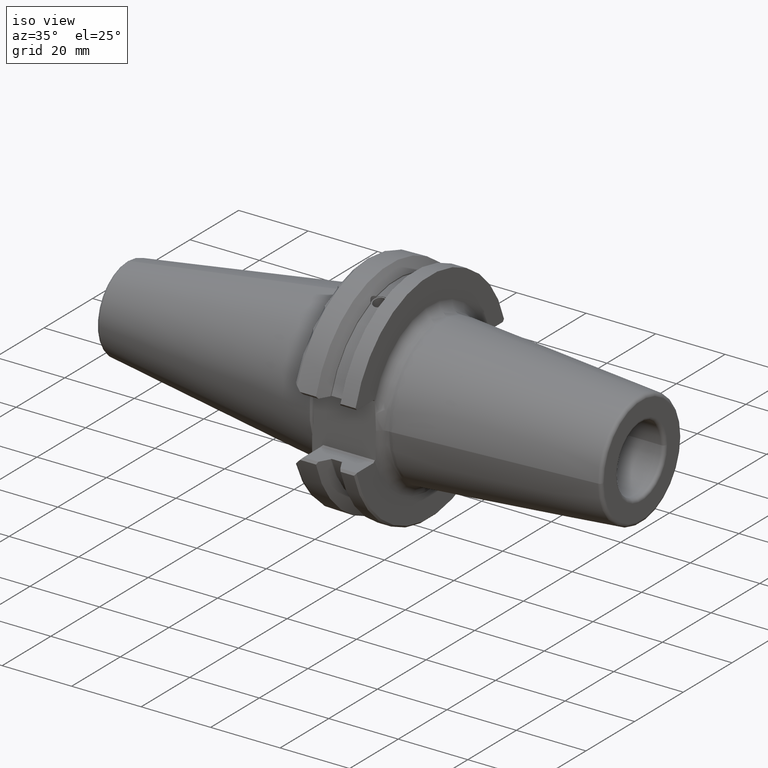
[diagram: clean part render]
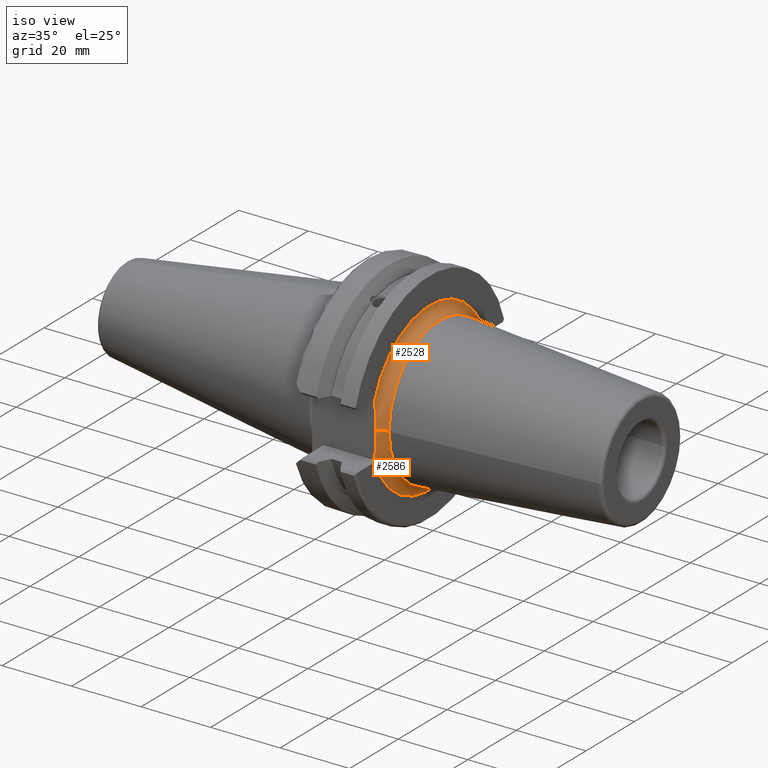
[diagram: same view with one multi-face feature highlighted, each face labeled with its STEP entity id]
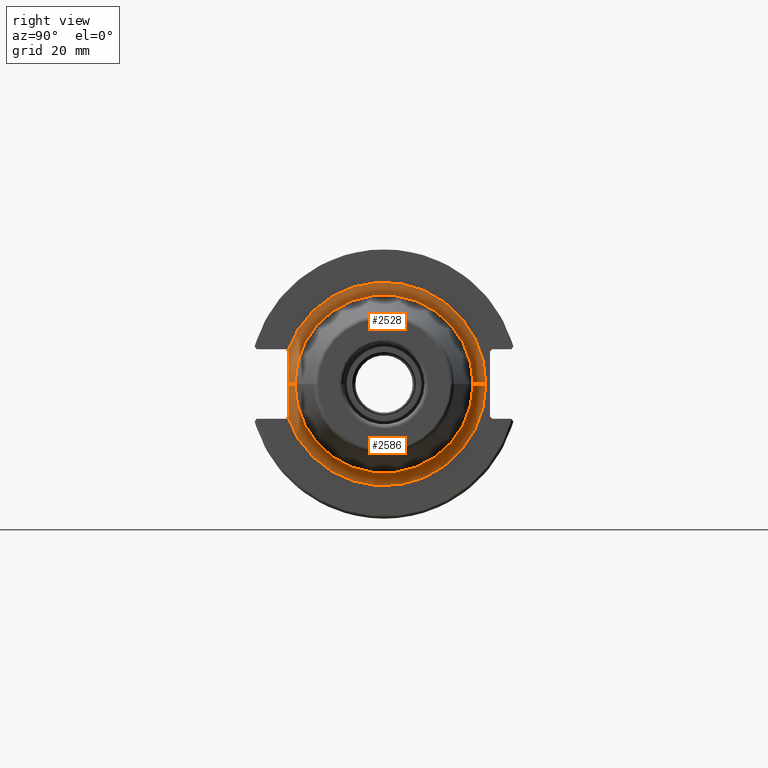
[diagram: same view with one multi-face feature highlighted, each face labeled with its STEP entity id]
A machine part, iso view. The highlighted faces form ONE feature: a constant-radius fillet chain: 2 tangent blend faces with common blend radius 3 mm. The faces share edges in the B-rep.
A second angle (right view) of the same feature is appended — it is thin or edge-on in the first view.
Their STEP definitions:
[1] entity #2528 (Torus):
#237=CARTESIAN_POINT('',(2.205E1,0.E0,0.E0));
#238=DIRECTION('',(1.E0,0.E0,0.E0));
#239=DIRECTION('',(0.E0,1.E0,0.E0));
#240=AXIS2_PLACEMENT_3D('',#237,#238,#239);
#247=CARTESIAN_POINT('',(2.205E1,2.400005840157E1,3.256063196844E-10));
#248=DIRECTION('',(0.E0,-1.356689934007E-11,1.E0));
#249=DIRECTION('',(-1.E0,7.519934304886E-10,0.E0));
#250=AXIS2_PLACEMENT_3D('',#247,#248,#249);
#257=CARTESIAN_POINT('',(1.905E1,0.E0,0.E0));
#258=DIRECTION('',(1.E0,0.E0,0.E0));
#259=DIRECTION('',(0.E0,1.E0,0.E0));
#260=AXIS2_PLACEMENT_3D('',#257,#258,#259);
#305=CARTESIAN_POINT('',(1.939673098349E1,-2.260000000005E1,7.046014674781E-5));
#307=CARTESIAN_POINT('',(2.205E1,-2.400005840074E1,7.482511667878E-5));
#308=DIRECTION('',(0.E0,-3.117705608419E-6,-9.999999999951E-1));
#309=DIRECTION('',(-8.844230055369E-1,4.666861335790E-1,-1.454989976038E-6));
#310=AXIS2_PLACEMENT_3D('',#307,#308,#309);
#1250=CARTESIAN_POINT('',(1.905271322372E1,-2.26E1,7.69E0));
#1251=CARTESIAN_POINT('',(1.905826273719E1,-2.26E1,7.285205596013E0));
#1252=CARTESIAN_POINT('',(1.908639472858E1,-2.26E1,6.438703756803E0));
#1253=CARTESIAN_POINT('',(1.916758713863E1,-2.26E1,5.065239355994E0));
#1254=CARTESIAN_POINT('',(1.927020157743E1,-2.260000000001E1,3.566142560436E0));
#1255=CARTESIAN_POINT('',(1.936926999322E1,-2.259999999998E1,1.824675131026E0));
#1256=CARTESIAN_POINT('',(1.939672996049E1,-2.260000000005E1,
6.219056915713E-1));
#1257=CARTESIAN_POINT('',(1.939673098349E1,-2.260000000005E1,
7.046014674781E-5));
#1271=CARTESIAN_POINT('',(1.905271322372E1,-2.26E1,7.69E0));
#1272=CARTESIAN_POINT('',(1.905180589380E1,-2.261680242192E1,7.706802421920E0));
#1273=CARTESIAN_POINT('',(1.905044943231E1,-2.265036895128E1,7.740285676459E0));
#1274=CARTESIAN_POINT('',(1.905E1,-2.268374514604E1,7.773911695674E0));
#1275=CARTESIAN_POINT('',(1.905E1,-2.270043291484E1,7.790599464483E0));
#2086=CARTESIAN_POINT('',(1.905E1,2.400005840085E1,0.E0));
#2088=VERTEX_POINT('',#2086);
#2089=CARTESIAN_POINT('',(2.205E1,-2.100005840383E1,0.E0));
#2090=CARTESIAN_POINT('',(2.205E1,2.100005840383E1,0.E0));
#2091=VERTEX_POINT('',#2089);
#2092=VERTEX_POINT('',#2090);
#2093=CARTESIAN_POINT('',(1.905E1,-2.270046780319E1,7.790479112047E0));
#2094=VERTEX_POINT('',#2093);
#2100=VERTEX_POINT('',#1271);
#2101=VERTEX_POINT('',#305);
#2510=CARTESIAN_POINT('',(2.205E1,0.E0,0.E0));
#2511=DIRECTION('',(1.E0,0.E0,0.E0));
#2512=DIRECTION('',(0.E0,9.999196739916E-1,-1.267460313487E-2));
#2513=AXIS2_PLACEMENT_3D('',#2510,#2511,#2512);
#2514=TOROIDAL_SURFACE('',#2513,2.400005840157E1,3.E0);
#2516=ORIENTED_EDGE('',*,*,#2515,.F.);
#2518=ORIENTED_EDGE('',*,*,#2517,.T.);
#2519=ORIENTED_EDGE('',*,*,#2500,.T.);
#2521=ORIENTED_EDGE('',*,*,#2520,.F.);
#2523=ORIENTED_EDGE('',*,*,#2522,.F.);
#2525=ORIENTED_EDGE('',*,*,#2524,.T.);
#2526=EDGE_LOOP('',(#2516,#2518,#2519,#2521,#2523,#2525));
#2527=FACE_OUTER_BOUND('',#2526,.F.);
#2528=ADVANCED_FACE('',(#2527),#2514,.F.);
#241=CIRCLE('',#240,2.100005840383E1);
#251=CIRCLE('',#250,3.E0);
#261=CIRCLE('',#260,2.400005840157E1);
#311=CIRCLE('',#310,3.E0);
#1258=B_SPLINE_CURVE_WITH_KNOTS('',3,(#1250,#1251,#1252,#1253,#1254,#1255,#1256,
#1257),.UNSPECIFIED.,.F.,.F.,(4,1,1,1,1,4),(0.E0,2.E-1,4.E-1,6.E-1,8.E-1,1.E0),
.UNSPECIFIED.);
#1276=B_SPLINE_CURVE_WITH_KNOTS('',3,(#1271,#1272,#1273,#1274,#1275),
.UNSPECIFIED.,.F.,.F.,(4,1,4),(0.E0,5.E-1,1.E0),.UNSPECIFIED.);
#2500=EDGE_CURVE('',#2092,#2091,#241,.T.);
#2515=EDGE_CURVE('',#2088,#2094,#261,.T.);
#2517=EDGE_CURVE('',#2088,#2092,#251,.T.);
#2520=EDGE_CURVE('',#2101,#2091,#311,.T.);
#2522=EDGE_CURVE('',#2100,#2101,#1258,.T.);
#2524=EDGE_CURVE('',#2100,#2094,#1276,.T.);
[2] entity #2586 (Torus):
#247=CARTESIAN_POINT('',(2.205E1,2.400005840157E1,3.256063196844E-10));
#248=DIRECTION('',(0.E0,-1.356689934007E-11,1.E0));
#249=DIRECTION('',(-1.E0,7.519934304886E-10,0.E0));
#250=AXIS2_PLACEMENT_3D('',#247,#248,#249);
#252=CARTESIAN_POINT('',(1.905E1,0.E0,0.E0));
#253=DIRECTION('',(1.E0,0.E0,0.E0));
#254=DIRECTION('',(0.E0,-9.458505540715E-1,-3.246024173703E-1));
#255=AXIS2_PLACEMENT_3D('',#252,#253,#254);
#298=CARTESIAN_POINT('',(1.905271322369E1,-2.26E1,-7.69E0));
#299=CARTESIAN_POINT('',(1.905826282544E1,-2.26E1,-7.285199154728E0));
#300=CARTESIAN_POINT('',(1.908639554621E1,-2.26E1,-6.438682886045E0));
#301=CARTESIAN_POINT('',(1.916759025598E1,-2.26E1,-5.065191243183E0));
#302=CARTESIAN_POINT('',(1.927020690146E1,-2.260000000001E1,-3.566064434477E0));
#303=CARTESIAN_POINT('',(1.936927519184E1,-2.259999999998E1,-1.824561641119E0));
#304=CARTESIAN_POINT('',(1.939673200650E1,-2.260000000005E1,
-6.217735494186E-1));
#305=CARTESIAN_POINT('',(1.939673098349E1,-2.260000000005E1,7.046014674781E-5));
#307=CARTESIAN_POINT('',(2.205E1,-2.400005840074E1,7.482511667878E-5));
#308=DIRECTION('',(0.E0,-3.117705608419E-6,-9.999999999951E-1));
#309=DIRECTION('',(-8.844230055369E-1,4.666861335790E-1,-1.454989976038E-6));
#310=AXIS2_PLACEMENT_3D('',#307,#308,#309);
#312=CARTESIAN_POINT('',(1.905271322369E1,-2.26E1,-7.69E0));
#313=CARTESIAN_POINT('',(1.905180615533E1,-2.261679757825E1,-7.706797578251E0));
#314=CARTESIAN_POINT('',(1.905044969360E1,-2.265035483055E1,-7.740291245914E0));
#315=CARTESIAN_POINT('',(1.905E1,-2.268374914799E1,-7.773876317257E0));
#316=CARTESIAN_POINT('',(1.905E1,-2.270044176399E1,-7.790568933257E0));
#1734=CARTESIAN_POINT('',(2.205E1,0.E0,0.E0));
#1735=DIRECTION('',(1.E0,0.E0,0.E0));
#1736=DIRECTION('',(0.E0,-1.E0,0.E0));
#1737=AXIS2_PLACEMENT_3D('',#1734,#1735,#1736);
#2085=CARTESIAN_POINT('',(1.905E1,-2.270046853620E1,-7.790476973947E0));
#2086=CARTESIAN_POINT('',(1.905E1,2.400005840085E1,0.E0));
#2087=VERTEX_POINT('',#2085);
#2088=VERTEX_POINT('',#2086);
#2089=CARTESIAN_POINT('',(2.205E1,-2.100005840383E1,0.E0));
#2090=CARTESIAN_POINT('',(2.205E1,2.100005840383E1,0.E0));
#2091=VERTEX_POINT('',#2089);
#2092=VERTEX_POINT('',#2090);
#2099=VERTEX_POINT('',#312);
#2101=VERTEX_POINT('',#305);
#2570=CARTESIAN_POINT('',(2.205E1,0.E0,0.E0));
#2571=DIRECTION('',(1.E0,0.E0,0.E0));
#2572=DIRECTION('',(0.E0,9.998379733946E-1,1.800074882154E-2));
#2573=AXIS2_PLACEMENT_3D('',#2570,#2571,#2572);
#2574=TOROIDAL_SURFACE('',#2573,2.400005840085E1,3.E0);
#2575=ORIENTED_EDGE('',*,*,#2534,.F.);
#2577=ORIENTED_EDGE('',*,*,#2576,.F.);
#2579=ORIENTED_EDGE('',*,*,#2578,.T.);
#2580=ORIENTED_EDGE('',*,*,#2520,.T.);
#2582=ORIENTED_EDGE('',*,*,#2581,.T.);
#2583=ORIENTED_EDGE('',*,*,#2517,.F.);
#2584=EDGE_LOOP('',(#2575,#2577,#2579,#2580,#2582,#2583));
#2585=FACE_OUTER_BOUND('',#2584,.F.);
#2586=ADVANCED_FACE('',(#2585),#2574,.F.);
#251=CIRCLE('',#250,3.E0);
#256=CIRCLE('',#255,2.400005840085E1);
#306=B_SPLINE_CURVE_WITH_KNOTS('',3,(#298,#299,#300,#301,#302,#303,#304,#305),
.UNSPECIFIED.,.F.,.F.,(4,1,1,1,1,4),(0.E0,2.E-1,4.E-1,6.E-1,8.E-1,1.E0),
.UNSPECIFIED.);
#311=CIRCLE('',#310,3.E0);
#317=B_SPLINE_CURVE_WITH_KNOTS('',3,(#312,#313,#314,#315,#316),.UNSPECIFIED.,
.F.,.F.,(4,1,4),(0.E0,5.E-1,1.E0),.UNSPECIFIED.);
#1738=CIRCLE('',#1737,2.100005840383E1);
#2517=EDGE_CURVE('',#2088,#2092,#251,.T.);
#2520=EDGE_CURVE('',#2101,#2091,#311,.T.);
#2534=EDGE_CURVE('',#2087,#2088,#256,.T.);
#2576=EDGE_CURVE('',#2099,#2087,#317,.T.);
#2578=EDGE_CURVE('',#2099,#2101,#306,.T.);
#2581=EDGE_CURVE('',#2091,#2092,#1738,.T.);